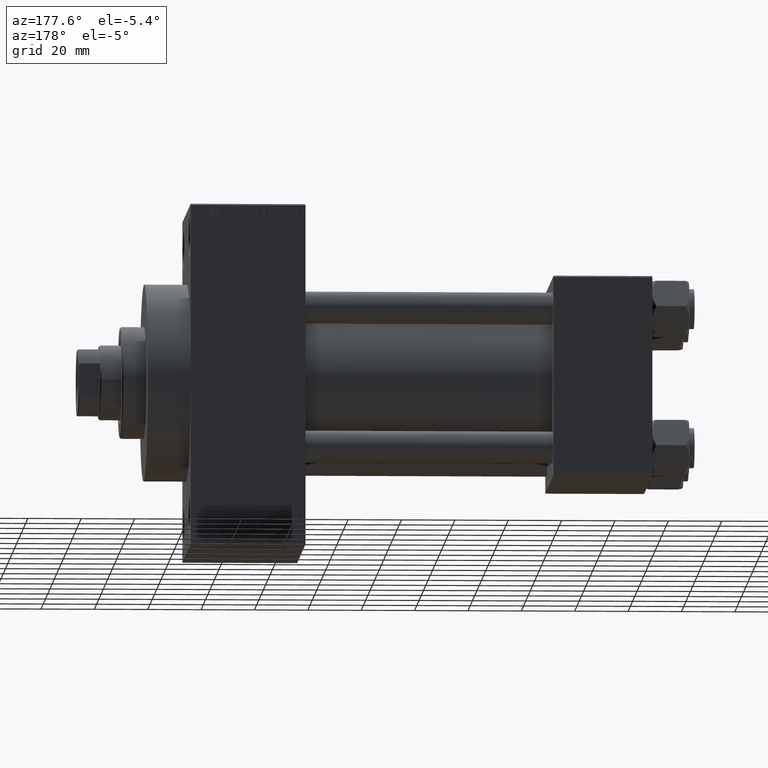
[diagram: clean part render]
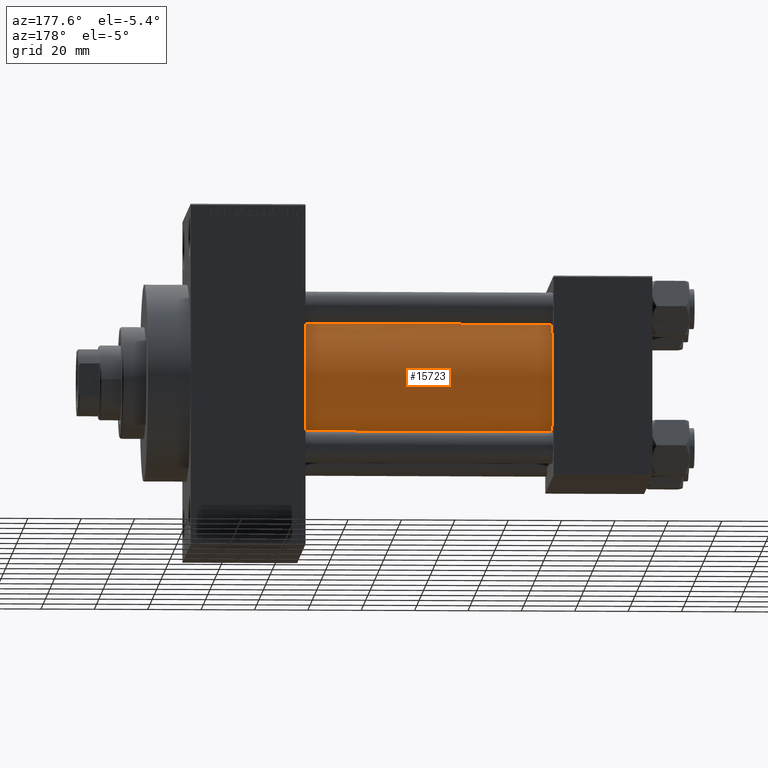
[diagram: same view with one face highlighted and labeled with its STEP entity id]
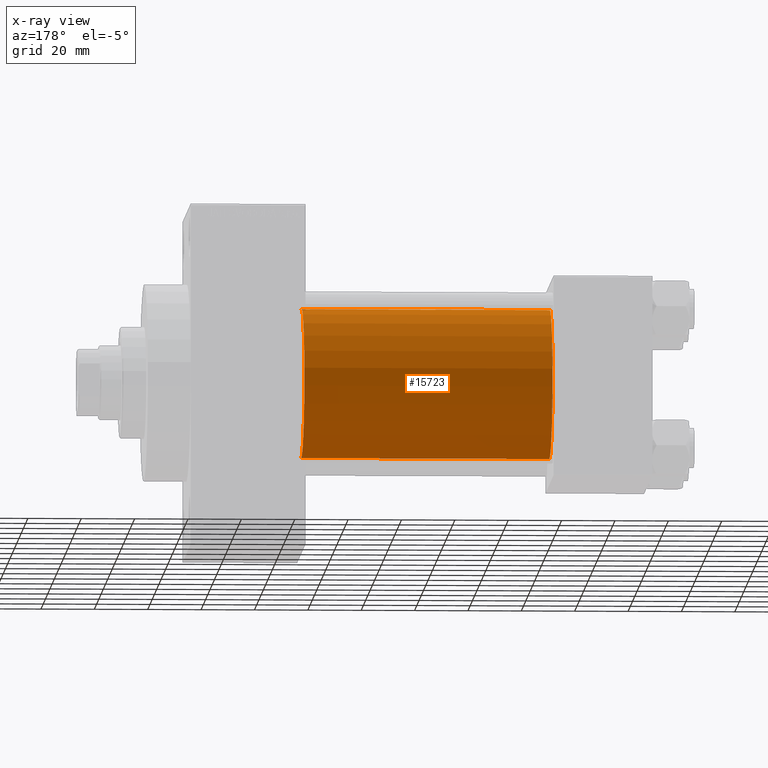
[diagram: x-ray of the same camera — body ghosted, the highlighted face saturated]
A machine part, auxiliary view. The second image highlights one B-rep face of the part: STEP entity #15723.
The next image is the same camera in x-ray: the body ghosted, the highlighted face saturated — about 0% of this face is hidden behind the body in this view.
In plain terms, the highlighted cylindrical surface (partial cylindrical patch) has radius 28 mm, axis along (-1, -0, -0).
Its self-contained STEP definition (entity closure, byte-faithful):
#491 = AXIS2_PLACEMENT_3D ( 'NONE', #1804, #5639, #29988 ) ;
#1094 = FACE_OUTER_BOUND ( 'NONE', #25033, .T. ) ;
#1173 = AXIS2_PLACEMENT_3D ( 'NONE', #26980, #8356, #40575 ) ;
#1311 = CARTESIAN_POINT ( 'NONE',  ( 130.0000000000000000, 8.269258236473776482E-16, -28.00000000000000000 ) ) ;
#1804 = CARTESIAN_POINT ( 'NONE',  ( 130.0000000000000000, -2.602085213965210642E-15, 0.000000000000000000 ) ) ;
#2358 = EDGE_CURVE ( 'NONE', #44766, #32567, #22037, .T. ) ;
#3662 = CARTESIAN_POINT ( 'NONE',  ( 130.0000000000000000, 8.269258236473776482E-16, -28.00000000000000000 ) ) ;
#4997 = VECTOR ( 'NONE', #33243, 1000.000000000000000 ) ;
#5402 = CYLINDRICAL_SURFACE ( 'NONE', #491, 28.00000000000000000 ) ;
#5639 = DIRECTION ( 'NONE',  ( -1.000000000000000000, -0.000000000000000000, -0.000000000000000000 ) ) ;
#8356 = DIRECTION ( 'NONE',  ( 1.000000000000000000, -0.000000000000000000, 0.000000000000000000 ) ) ;
#11269 = DIRECTION ( 'NONE',  ( -1.000000000000000000, -0.000000000000000000, -0.000000000000000000 ) ) ;
#11319 = CARTESIAN_POINT ( 'NONE',  ( 130.0000000000000000, -2.602085213965210642E-15, 0.000000000000000000 ) ) ;
#13289 = EDGE_CURVE ( 'NONE', #32567, #26399, #36983, .T. ) ;
#15699 = VERTEX_POINT ( 'NONE', #37858 ) ;
#15723 = ADVANCED_FACE ( 'NONE', ( #1094 ), #5402, .T. ) ;
#15824 = EDGE_CURVE ( 'NONE', #44766, #15699, #27933, .T. ) ;
#20610 = CARTESIAN_POINT ( 'NONE',  ( 37.00000000000000711, 8.269258236473776482E-16, -28.00000000000000000 ) ) ;
#21924 = EDGE_CURVE ( 'NONE', #15699, #26399, #26776, .T. ) ;
#22037 = LINE ( 'NONE', #3662, #4997 ) ;
#22289 = DIRECTION ( 'NONE',  ( 1.000000000000000000, 0.000000000000000000, 0.000000000000000000 ) ) ;
#23107 = CARTESIAN_POINT ( 'NONE',  ( 37.00000000000000711, -2.602085213965210642E-15, 28.00000000000000000 ) ) ;
#25033 = EDGE_LOOP ( 'NONE', ( #30615, #36317, #33378, #44707 ) ) ;
#25885 = DIRECTION ( 'NONE',  ( 0.000000000000000000, 0.000000000000000000, -1.000000000000000000 ) ) ;
#26399 = VERTEX_POINT ( 'NONE', #23107 ) ;
#26633 = VECTOR ( 'NONE', #11269, 1000.000000000000000 ) ;
#26776 = LINE ( 'NONE', #41317, #26633 ) ;
#26980 = CARTESIAN_POINT ( 'NONE',  ( 37.00000000000000711, -2.602085213965210642E-15, 0.000000000000000000 ) ) ;
#27933 = CIRCLE ( 'NONE', #35554, 28.00000000000000000 ) ;
#29988 = DIRECTION ( 'NONE',  ( 0.000000000000000000, 0.000000000000000000, 1.000000000000000000 ) ) ;
#30615 = ORIENTED_EDGE ( 'NONE', *, *, #15824, .F. ) ;
#32567 = VERTEX_POINT ( 'NONE', #20610 ) ;
#33243 = DIRECTION ( 'NONE',  ( -1.000000000000000000, -0.000000000000000000, -0.000000000000000000 ) ) ;
#33378 = ORIENTED_EDGE ( 'NONE', *, *, #13289, .T. ) ;
#35554 = AXIS2_PLACEMENT_3D ( 'NONE', #11319, #22289, #25885 ) ;
#36317 = ORIENTED_EDGE ( 'NONE', *, *, #2358, .T. ) ;
#36983 = CIRCLE ( 'NONE', #1173, 28.00000000000000000 ) ;
#37858 = CARTESIAN_POINT ( 'NONE',  ( 130.0000000000000000, -2.602085213965210642E-15, 28.00000000000000000 ) ) ;
#40575 = DIRECTION ( 'NONE',  ( 0.000000000000000000, 0.000000000000000000, 1.000000000000000000 ) ) ;
#41317 = CARTESIAN_POINT ( 'NONE',  ( 130.0000000000000000, -2.602085213965210642E-15, 28.00000000000000000 ) ) ;
#44707 = ORIENTED_EDGE ( 'NONE', *, *, #21924, .F. ) ;
#44766 = VERTEX_POINT ( 'NONE', #1311 ) ;